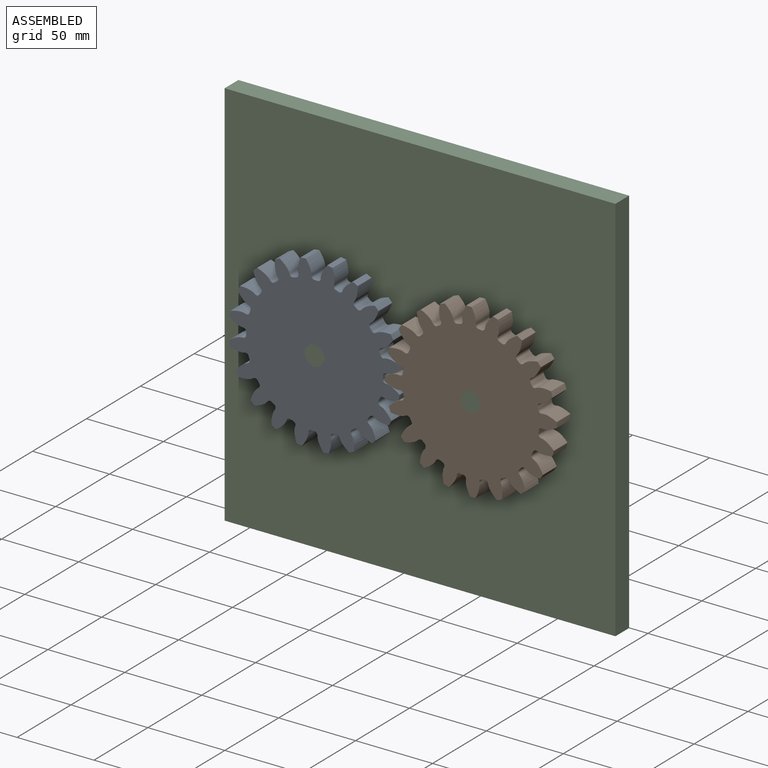
[diagram: assembled view]
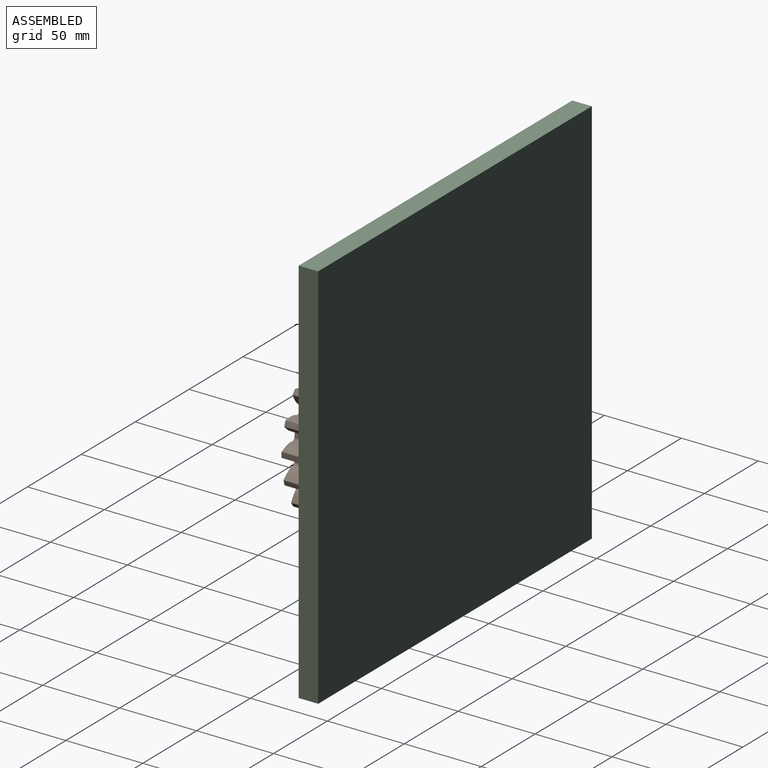
[diagram: assembled view, second angle]
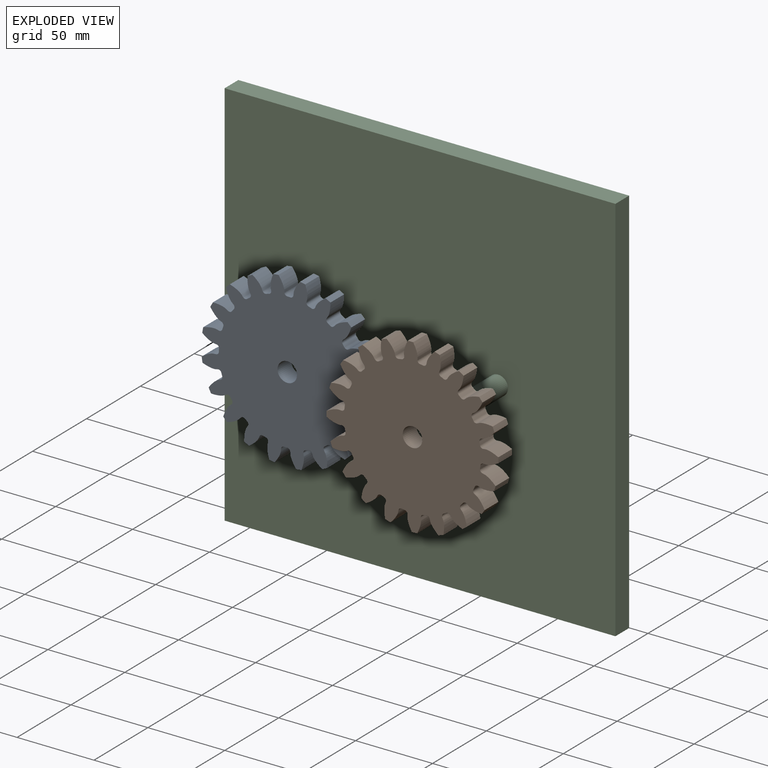
[diagram: exploded view]
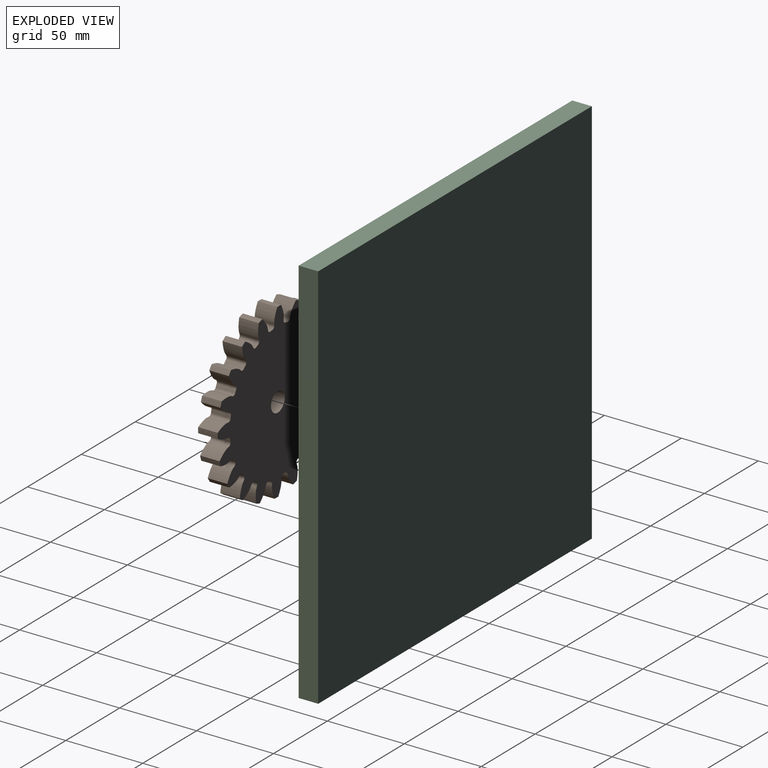
[diagram: exploded view, second angle]
ASSEMBLY  parts=3 mates=2
PART A: 123 faces, bbox 111x12.7x111 mm
  f0: extruded ~12.7x9.23mm, area 130.7mm2, adj f80,f81,f82,f83
  f1: cylinder r=44.45mm len=12.7mm, axis (0,1,0), area 25.8mm2, adj f81,f82,f83,f84
  f2: extruded ~12.7x9.23mm, area 130.7mm2, adj f3,f81,f82,f84
  f3: cylinder r=55.88mm len=12.7mm, axis (0,1,0), area 44.8mm2, adj f2,f4,f81,f82
  f4: extruded ~12.7x10.04mm, area 130.7mm2, adj f3,f81,f82,f85
  f5: cylinder r=44.45mm len=12.7mm, axis (0,1,0), area 25.8mm2, adj f81,f82,f85,f86
  f6: extruded ~12.7x7.53mm, area 130.7mm2, adj f7,f81,f82,f86
  f7: cylinder r=55.88mm len=12.7mm, axis (0,1,0), area 44.8mm2, adj f6,f8,f81,f82
  f8: extruded ~12.7x9.86mm, area 130.7mm2, adj f7,f81,f82,f87
  f9: cylinder r=44.45mm len=12.7mm, axis (0,1,0), area 25.8mm2, adj f81,f82,f87,f88
  f10: extruded ~12.7x8.71mm, area 130.7mm2, adj f11,f81,f82,f88
  f11: cylinder r=55.88mm len=12.7mm, axis (0,1,0), area 44.8mm2, adj f10,f12,f81,f82
  f12: extruded ~12.7x8.71mm, area 130.7mm2, adj f11,f81,f82,f89
  f13: cylinder r=44.45mm len=12.7mm, axis (0,1,0), area 25.8mm2, adj f81,f82,f89,f90
  f14: extruded ~12.7x9.86mm, area 130.7mm2, adj f15,f81,f82,f90
  f15: cylinder r=55.88mm len=12.7mm, axis (0,1,0), area 44.8mm2, adj f14,f16,f81,f82
  f16: extruded ~12.7x7.53mm, area 130.7mm2, adj f15,f81,f82,f91
  f17: cylinder r=44.45mm len=12.7mm, axis (0,1,0), area 25.8mm2, adj f81,f82,f91,f92
  f18: extruded ~12.7x10.04mm, area 130.7mm2, adj f19,f81,f82,f92
  f19: cylinder r=55.88mm len=12.7mm, axis (0,1,0), area 44.8mm2, adj f18,f20,f81,f82
  f20: extruded ~12.7x9.23mm, area 130.7mm2, adj f19,f81,f82,f93
  f21: cylinder r=44.45mm len=12.7mm, axis (0,1,0), area 25.8mm2, adj f81,f82,f93,f94
  f22: extruded ~12.7x9.23mm, area 130.7mm2, adj f23,f81,f82,f94
  f23: cylinder r=55.88mm len=12.7mm, axis (0,1,0), area 44.8mm2, adj f22,f24,f81,f82
  f24: extruded ~12.7x10.04mm, area 130.7mm2, adj f23,f81,f82,f95
  f25: cylinder r=44.45mm len=12.7mm, axis (0,1,0), area 25.8mm2, adj f81,f82,f95,f96
  f26: extruded ~12.7x7.53mm, area 130.7mm2, adj f27,f81,f82,f96
  f27: cylinder r=55.88mm len=12.7mm, axis (0,1,0), area 44.8mm2, adj f26,f28,f81,f82
  f28: extruded ~12.7x9.86mm, area 130.7mm2, adj f27,f81,f82,f97
  f29: cylinder r=44.45mm len=12.7mm, axis (0,1,0), area 25.8mm2, adj f81,f82,f97,f98
  f30: extruded ~12.7x8.71mm, area 130.7mm2, adj f31,f81,f82,f98
  f31: cylinder r=55.88mm len=12.7mm, axis (0,1,0), area 44.8mm2, adj f30,f32,f81,f82
  f32: extruded ~12.7x8.71mm, area 130.7mm2, adj f31,f81,f82,f99
  f33: cylinder r=44.45mm len=12.7mm, axis (0,1,0), area 25.8mm2, adj f81,f82,f99,f100
  f34: extruded ~12.7x9.86mm, area 130.7mm2, adj f35,f81,f82,f100
  f35: cylinder r=55.88mm len=12.7mm, axis (0,1,0), area 44.8mm2, adj f34,f36,f81,f82
  f36: extruded ~12.7x7.53mm, area 130.7mm2, adj f35,f81,f82,f101
  f37: cylinder r=44.45mm len=12.7mm, axis (0,1,0), area 25.8mm2, adj f81,f82,f101,f102
  f38: extruded ~12.7x10.04mm, area 130.7mm2, adj f39,f81,f82,f102
  f39: cylinder r=55.88mm len=12.7mm, axis (0,1,0), area 44.8mm2, adj f38,f40,f81,f82
  f40: extruded ~12.7x9.23mm, area 130.7mm2, adj f39,f81,f82,f103
  f41: cylinder r=44.45mm len=12.7mm, axis (0,1,0), area 25.8mm2, adj f81,f82,f103,f104
  f42: extruded ~12.7x9.23mm, area 130.7mm2, adj f43,f81,f82,f104
  f43: cylinder r=55.88mm len=12.7mm, axis (0,1,0), area 44.8mm2, adj f42,f44,f81,f82
  f44: extruded ~12.7x10.04mm, area 130.7mm2, adj f43,f81,f82,f105
  f45: cylinder r=44.45mm len=12.7mm, axis (0,1,0), area 25.8mm2, adj f81,f82,f105,f106
  f46: extruded ~12.7x7.53mm, area 130.7mm2, adj f47,f81,f82,f106
  f47: cylinder r=55.88mm len=12.7mm, axis (0,1,0), area 44.8mm2, adj f46,f48,f81,f82
  f48: extruded ~12.7x9.86mm, area 130.7mm2, adj f47,f81,f82,f107
  f49: cylinder r=44.45mm len=12.7mm, axis (0,1,0), area 25.8mm2, adj f81,f82,f107,f108
  f50: extruded ~12.7x8.71mm, area 130.7mm2, adj f51,f81,f82,f108
  f51: cylinder r=55.88mm len=12.7mm, axis (0,1,0), area 44.8mm2, adj f50,f52,f81,f82
  f52: extruded ~12.7x8.71mm, area 130.7mm2, adj f51,f81,f82,f109
  f53: cylinder r=44.45mm len=12.7mm, axis (0,1,0), area 25.8mm2, adj f81,f82,f109,f110
  f54: extruded ~12.7x9.86mm, area 130.7mm2, adj f55,f81,f82,f110
  f55: cylinder r=55.88mm len=12.7mm, axis (0,1,0), area 44.8mm2, adj f54,f56,f81,f82
  f56: extruded ~12.7x7.53mm, area 130.7mm2, adj f55,f81,f82,f111
  f57: cylinder r=44.45mm len=12.7mm, axis (0,1,0), area 25.8mm2, adj f81,f82,f111,f112
  f58: extruded ~12.7x10.04mm, area 130.7mm2, adj f59,f81,f82,f112
  f59: cylinder r=55.88mm len=12.7mm, axis (0,1,0), area 44.8mm2, adj f58,f60,f81,f82
  f60: extruded ~12.7x9.23mm, area 130.7mm2, adj f59,f81,f82,f113
  f61: cylinder r=44.45mm len=12.7mm, axis (0,1,0), area 25.8mm2, adj f81,f82,f113,f114
  f62: extruded ~12.7x9.23mm, area 130.7mm2, adj f63,f81,f82,f114
  f63: cylinder r=55.88mm len=12.7mm, axis (0,1,0), area 44.8mm2, adj f62,f64,f81,f82
  f64: extruded ~12.7x10.04mm, area 130.7mm2, adj f63,f81,f82,f115
  f65: cylinder r=44.45mm len=12.7mm, axis (0,1,0), area 25.8mm2, adj f81,f82,f115,f116
  f66: extruded ~12.7x7.53mm, area 130.7mm2, adj f67,f81,f82,f116
  f67: cylinder r=55.88mm len=12.7mm, axis (0,1,0), area 44.8mm2, adj f66,f68,f81,f82
  f68: extruded ~12.7x9.86mm, area 130.7mm2, adj f67,f81,f82,f117
  f69: cylinder r=44.45mm len=12.7mm, axis (0,1,0), area 25.8mm2, adj f81,f82,f117,f118
  f70: extruded ~12.7x8.71mm, area 130.7mm2, adj f71,f81,f82,f118
  f71: cylinder r=55.88mm len=12.7mm, axis (0,1,0), area 44.8mm2, adj f70,f72,f81,f82
  f72: extruded ~12.7x8.71mm, area 130.7mm2, adj f71,f81,f82,f119
  f73: cylinder r=44.45mm len=12.7mm, axis (0,1,0), area 25.8mm2, adj f81,f82,f119,f120
  f74: extruded ~12.7x9.86mm, area 130.7mm2, adj f75,f81,f82,f120
  f75: cylinder r=55.88mm len=12.7mm, axis (0,1,0), area 44.8mm2, adj f74,f76,f81,f82
  f76: extruded ~12.7x7.53mm, area 130.7mm2, adj f75,f81,f82,f121
  f77: cylinder r=44.45mm len=12.7mm, axis (0,1,0), area 25.8mm2, adj f81,f82,f121,f122
  f78: extruded ~12.7x10.04mm, area 130.7mm2, adj f80,f81,f82,f122
  f79: cylinder r=6.35mm len=12.7mm, axis (0,1,0), area 506.7mm2, adj f81,f82
  f80: cylinder r=55.88mm len=12.7mm, axis (0,1,0), area 44.8mm2, adj f0,f78,f81,f82
  f81: plane 110.96x110.96mm, normal (0,-1,0), area 7813mm2, adj f0,f1,f2,f3,f4,f5,f6,f7
  f82: plane 110.96x110.96mm, normal (0,1,0), area 7813mm2, adj f0,f1,f2,f3,f4,f5,f6,f7
  f83: cylinder r=1.88mm len=12.7mm, axis (0,1,0), area 36.7mm2, adj f0,f1,f81,f82
  f84: cylinder r=1.88mm len=12.7mm, axis (0,1,0), area 36.7mm2, adj f1,f2,f81,f82
  f85: cylinder r=1.88mm len=12.7mm, axis (0,1,0), area 36.7mm2, adj f4,f5,f81,f82
  f86: cylinder r=1.88mm len=12.7mm, axis (0,1,0), area 36.7mm2, adj f5,f6,f81,f82
  f87: cylinder r=1.88mm len=12.7mm, axis (0,1,0), area 36.7mm2, adj f8,f9,f81,f82
  f88: cylinder r=1.88mm len=12.7mm, axis (0,1,0), area 36.7mm2, adj f9,f10,f81,f82
  f89: cylinder r=1.88mm len=12.7mm, axis (0,1,0), area 36.7mm2, adj f12,f13,f81,f82
  f90: cylinder r=1.88mm len=12.7mm, axis (0,1,0), area 36.7mm2, adj f13,f14,f81,f82
  f91: cylinder r=1.88mm len=12.7mm, axis (0,1,0), area 36.7mm2, adj f16,f17,f81,f82
  f92: cylinder r=1.88mm len=12.7mm, axis (0,1,0), area 36.7mm2, adj f17,f18,f81,f82
  f93: cylinder r=1.88mm len=12.7mm, axis (0,1,0), area 36.7mm2, adj f20,f21,f81,f82
  f94: cylinder r=1.88mm len=12.7mm, axis (0,1,0), area 36.7mm2, adj f21,f22,f81,f82
  f95: cylinder r=1.88mm len=12.7mm, axis (0,1,0), area 36.7mm2, adj f24,f25,f81,f82
  f96: cylinder r=1.88mm len=12.7mm, axis (0,1,0), area 36.7mm2, adj f25,f26,f81,f82
  f97: cylinder r=1.88mm len=12.7mm, axis (0,1,0), area 36.7mm2, adj f28,f29,f81,f82
  f98: cylinder r=1.88mm len=12.7mm, axis (0,1,0), area 36.7mm2, adj f29,f30,f81,f82
  f99: cylinder r=1.88mm len=12.7mm, axis (0,1,0), area 36.7mm2, adj f32,f33,f81,f82
  f100: cylinder r=1.88mm len=12.7mm, axis (0,1,0), area 36.7mm2, adj f33,f34,f81,f82
  f101: cylinder r=1.88mm len=12.7mm, axis (0,1,0), area 36.7mm2, adj f36,f37,f81,f82
  f102: cylinder r=1.88mm len=12.7mm, axis (0,1,0), area 36.7mm2, adj f37,f38,f81,f82
  f103: cylinder r=1.88mm len=12.7mm, axis (0,1,0), area 36.7mm2, adj f40,f41,f81,f82
  f104: cylinder r=1.88mm len=12.7mm, axis (0,1,0), area 36.7mm2, adj f41,f42,f81,f82
  f105: cylinder r=1.88mm len=12.7mm, axis (0,1,0), area 36.7mm2, adj f44,f45,f81,f82
  f106: cylinder r=1.88mm len=12.7mm, axis (0,1,0), area 36.7mm2, adj f45,f46,f81,f82
  f107: cylinder r=1.88mm len=12.7mm, axis (0,1,0), area 36.7mm2, adj f48,f49,f81,f82
  f108: cylinder r=1.88mm len=12.7mm, axis (0,1,0), area 36.7mm2, adj f49,f50,f81,f82
  f109: cylinder r=1.88mm len=12.7mm, axis (0,1,0), area 36.7mm2, adj f52,f53,f81,f82
  f110: cylinder r=1.88mm len=12.7mm, axis (0,1,0), area 36.7mm2, adj f53,f54,f81,f82
  f111: cylinder r=1.88mm len=12.7mm, axis (0,1,0), area 36.7mm2, adj f56,f57,f81,f82
  f112: cylinder r=1.88mm len=12.7mm, axis (0,1,0), area 36.7mm2, adj f57,f58,f81,f82
  f113: cylinder r=1.88mm len=12.7mm, axis (0,1,0), area 36.7mm2, adj f60,f61,f81,f82
  f114: cylinder r=1.88mm len=12.7mm, axis (0,1,0), area 36.7mm2, adj f61,f62,f81,f82
  f115: cylinder r=1.88mm len=12.7mm, axis (0,1,0), area 36.7mm2, adj f64,f65,f81,f82
  f116: cylinder r=1.88mm len=12.7mm, axis (0,1,0), area 36.7mm2, adj f65,f66,f81,f82
  f117: cylinder r=1.88mm len=12.7mm, axis (0,1,0), area 36.7mm2, adj f68,f69,f81,f82
  f118: cylinder r=1.88mm len=12.7mm, axis (0,1,0), area 36.7mm2, adj f69,f70,f81,f82
  f119: cylinder r=1.88mm len=12.7mm, axis (0,1,0), area 36.7mm2, adj f72,f73,f81,f82
  f120: cylinder r=1.88mm len=12.7mm, axis (0,1,0), area 36.7mm2, adj f73,f74,f81,f82
  f121: cylinder r=1.88mm len=12.7mm, axis (0,1,0), area 36.7mm2, adj f76,f77,f81,f82
  f122: cylinder r=1.88mm len=12.7mm, axis (0,1,0), area 36.7mm2, adj f77,f78,f81,f82
PART B: 123 faces, bbox 111.8x12.7x111.8 mm
  f0: extruded ~12.7x9.76mm, area 130.7mm2, adj f80,f81,f82,f83
  f1: cylinder r=44.45mm len=12.7mm, axis (0,1,0), area 25.8mm2, adj f81,f82,f83,f84
  f2: extruded ~12.7x8.49mm, area 130.7mm2, adj f3,f81,f82,f84
  f3: cylinder r=55.88mm len=12.7mm, axis (0,1,0), area 44.8mm2, adj f2,f4,f81,f82
  f4: extruded ~12.7x10.07mm, area 130.7mm2, adj f3,f81,f82,f85
  f5: cylinder r=44.45mm len=12.7mm, axis (0,1,0), area 25.8mm2, adj f81,f82,f85,f86
  f6: extruded ~12.7x7.81mm, area 130.7mm2, adj f7,f81,f82,f86
  f7: cylinder r=55.88mm len=12.7mm, axis (0,1,0), area 44.8mm2, adj f6,f8,f81,f82
  f8: extruded ~12.7x9.4mm, area 130.7mm2, adj f7,f81,f82,f87
  f9: cylinder r=44.45mm len=12.7mm, axis (0,1,0), area 25.8mm2, adj f81,f82,f87,f88
  f10: extruded ~12.7x9.4mm, area 130.7mm2, adj f11,f81,f82,f88
  f11: cylinder r=55.88mm len=12.7mm, axis (0,1,0), area 44.8mm2, adj f10,f12,f81,f82
  f12: extruded ~12.7x7.81mm, area 130.7mm2, adj f11,f81,f82,f89
  f13: cylinder r=44.45mm len=12.7mm, axis (0,1,0), area 25.8mm2, adj f81,f82,f89,f90
  f14: extruded ~12.7x10.07mm, area 130.7mm2, adj f15,f81,f82,f90
  f15: cylinder r=55.88mm len=12.7mm, axis (0,1,0), area 44.8mm2, adj f14,f16,f81,f82
  f16: extruded ~12.7x8.49mm, area 130.7mm2, adj f15,f81,f82,f91
  f17: cylinder r=44.45mm len=12.7mm, axis (0,1,0), area 25.8mm2, adj f81,f82,f91,f92
  f18: extruded ~12.7x9.76mm, area 130.7mm2, adj f19,f81,f82,f92
  f19: cylinder r=55.88mm len=12.7mm, axis (0,1,0), area 44.8mm2, adj f18,f20,f81,f82
  f20: extruded ~12.7x9.76mm, area 130.7mm2, adj f19,f81,f82,f93
  f21: cylinder r=44.45mm len=12.7mm, axis (0,1,0), area 25.8mm2, adj f81,f82,f93,f94
  f22: extruded ~12.7x8.49mm, area 130.7mm2, adj f23,f81,f82,f94
  f23: cylinder r=55.88mm len=12.7mm, axis (0,1,0), area 44.8mm2, adj f22,f24,f81,f82
  f24: extruded ~12.7x10.07mm, area 130.7mm2, adj f23,f81,f82,f95
  f25: cylinder r=44.45mm len=12.7mm, axis (0,1,0), area 25.8mm2, adj f81,f82,f95,f96
  f26: extruded ~12.7x7.81mm, area 130.7mm2, adj f27,f81,f82,f96
  f27: cylinder r=55.88mm len=12.7mm, axis (0,1,0), area 44.8mm2, adj f26,f28,f81,f82
  f28: extruded ~12.7x9.4mm, area 130.7mm2, adj f27,f81,f82,f97
  f29: cylinder r=44.45mm len=12.7mm, axis (0,1,0), area 25.8mm2, adj f81,f82,f97,f98
  f30: extruded ~12.7x9.4mm, area 130.7mm2, adj f31,f81,f82,f98
  f31: cylinder r=55.88mm len=12.7mm, axis (0,1,0), area 44.8mm2, adj f30,f32,f81,f82
  f32: extruded ~12.7x7.81mm, area 130.7mm2, adj f31,f81,f82,f99
  f33: cylinder r=44.45mm len=12.7mm, axis (0,1,0), area 25.8mm2, adj f81,f82,f99,f100
  f34: extruded ~12.7x10.07mm, area 130.7mm2, adj f35,f81,f82,f100
  f35: cylinder r=55.88mm len=12.7mm, axis (0,1,0), area 44.8mm2, adj f34,f36,f81,f82
  f36: extruded ~12.7x8.49mm, area 130.7mm2, adj f35,f81,f82,f101
  f37: cylinder r=44.45mm len=12.7mm, axis (0,1,0), area 25.8mm2, adj f81,f82,f101,f102
  f38: extruded ~12.7x9.76mm, area 130.7mm2, adj f39,f81,f82,f102
  f39: cylinder r=55.88mm len=12.7mm, axis (0,1,0), area 44.8mm2, adj f38,f40,f81,f82
  f40: extruded ~12.7x9.76mm, area 130.7mm2, adj f39,f81,f82,f103
  f41: cylinder r=44.45mm len=12.7mm, axis (0,1,0), area 25.8mm2, adj f81,f82,f103,f104
  f42: extruded ~12.7x8.49mm, area 130.7mm2, adj f43,f81,f82,f104
  f43: cylinder r=55.88mm len=12.7mm, axis (0,1,0), area 44.8mm2, adj f42,f44,f81,f82
  f44: extruded ~12.7x10.07mm, area 130.7mm2, adj f43,f81,f82,f105
  f45: cylinder r=44.45mm len=12.7mm, axis (0,1,0), area 25.8mm2, adj f81,f82,f105,f106
  f46: extruded ~12.7x7.81mm, area 130.7mm2, adj f47,f81,f82,f106
  f47: cylinder r=55.88mm len=12.7mm, axis (0,1,0), area 44.8mm2, adj f46,f48,f81,f82
  f48: extruded ~12.7x9.4mm, area 130.7mm2, adj f47,f81,f82,f107
  f49: cylinder r=44.45mm len=12.7mm, axis (0,1,0), area 25.8mm2, adj f81,f82,f107,f108
  f50: extruded ~12.7x9.4mm, area 130.7mm2, adj f51,f81,f82,f108
  f51: cylinder r=55.88mm len=12.7mm, axis (0,1,0), area 44.8mm2, adj f50,f52,f81,f82
  f52: extruded ~12.7x7.81mm, area 130.7mm2, adj f51,f81,f82,f109
  f53: cylinder r=44.45mm len=12.7mm, axis (0,1,0), area 25.8mm2, adj f81,f82,f109,f110
  f54: extruded ~12.7x10.07mm, area 130.7mm2, adj f55,f81,f82,f110
  f55: cylinder r=55.88mm len=12.7mm, axis (0,1,0), area 44.8mm2, adj f54,f56,f81,f82
  f56: extruded ~12.7x8.49mm, area 130.7mm2, adj f55,f81,f82,f111
  f57: cylinder r=44.45mm len=12.7mm, axis (0,1,0), area 25.8mm2, adj f81,f82,f111,f112
  f58: extruded ~12.7x9.76mm, area 130.7mm2, adj f59,f81,f82,f112
  f59: cylinder r=55.88mm len=12.7mm, axis (0,1,0), area 44.8mm2, adj f58,f60,f81,f82
  f60: extruded ~12.7x9.76mm, area 130.7mm2, adj f59,f81,f82,f113
  f61: cylinder r=44.45mm len=12.7mm, axis (0,1,0), area 25.8mm2, adj f81,f82,f113,f114
  f62: extruded ~12.7x8.49mm, area 130.7mm2, adj f63,f81,f82,f114
  f63: cylinder r=55.88mm len=12.7mm, axis (0,1,0), area 44.8mm2, adj f62,f64,f81,f82
  f64: extruded ~12.7x10.07mm, area 130.7mm2, adj f63,f81,f82,f115
  f65: cylinder r=44.45mm len=12.7mm, axis (0,1,0), area 25.8mm2, adj f81,f82,f115,f116
  f66: extruded ~12.7x7.81mm, area 130.7mm2, adj f67,f81,f82,f116
  f67: cylinder r=55.88mm len=12.7mm, axis (0,1,0), area 44.8mm2, adj f66,f68,f81,f82
  f68: extruded ~12.7x9.4mm, area 130.7mm2, adj f67,f81,f82,f117
  f69: cylinder r=44.45mm len=12.7mm, axis (0,1,0), area 25.8mm2, adj f81,f82,f117,f118
  f70: extruded ~12.7x9.4mm, area 130.7mm2, adj f71,f81,f82,f118
  f71: cylinder r=55.88mm len=12.7mm, axis (0,1,0), area 44.8mm2, adj f70,f72,f81,f82
  f72: extruded ~12.7x7.81mm, area 130.7mm2, adj f71,f81,f82,f119
  f73: cylinder r=44.45mm len=12.7mm, axis (0,1,0), area 25.8mm2, adj f81,f82,f119,f120
  f74: extruded ~12.7x10.07mm, area 130.7mm2, adj f75,f81,f82,f120
  f75: cylinder r=55.88mm len=12.7mm, axis (0,1,0), area 44.8mm2, adj f74,f76,f81,f82
  f76: extruded ~12.7x8.49mm, area 130.7mm2, adj f75,f81,f82,f121
  f77: cylinder r=44.45mm len=12.7mm, axis (0,1,0), area 25.8mm2, adj f81,f82,f121,f122
  f78: extruded ~12.7x9.76mm, area 130.7mm2, adj f80,f81,f82,f122
  f79: cylinder r=6.35mm len=12.7mm, axis (0,1,0), area 506.7mm2, adj f81,f82
  f80: cylinder r=55.88mm len=12.7mm, axis (0,1,0), area 44.8mm2, adj f0,f78,f81,f82
  f81: plane 111.78x111.78mm, normal (0,-1,0), area 7813mm2, adj f0,f1,f2,f3,f4,f5,f6,f7
  f82: plane 111.78x111.78mm, normal (0,1,0), area 7813mm2, adj f0,f1,f2,f3,f4,f5,f6,f7
  f83: cylinder r=1.88mm len=12.7mm, axis (0,1,0), area 36.7mm2, adj f0,f1,f81,f82
  f84: cylinder r=1.88mm len=12.7mm, axis (0,1,0), area 36.7mm2, adj f1,f2,f81,f82
  f85: cylinder r=1.88mm len=12.7mm, axis (0,1,0), area 36.7mm2, adj f4,f5,f81,f82
  f86: cylinder r=1.88mm len=12.7mm, axis (0,1,0), area 36.7mm2, adj f5,f6,f81,f82
  f87: cylinder r=1.88mm len=12.7mm, axis (0,1,0), area 36.7mm2, adj f8,f9,f81,f82
  f88: cylinder r=1.88mm len=12.7mm, axis (0,1,0), area 36.7mm2, adj f9,f10,f81,f82
  f89: cylinder r=1.88mm len=12.7mm, axis (0,1,0), area 36.7mm2, adj f12,f13,f81,f82
  f90: cylinder r=1.88mm len=12.7mm, axis (0,1,0), area 36.7mm2, adj f13,f14,f81,f82
  f91: cylinder r=1.88mm len=12.7mm, axis (0,1,0), area 36.7mm2, adj f16,f17,f81,f82
  f92: cylinder r=1.88mm len=12.7mm, axis (0,1,0), area 36.7mm2, adj f17,f18,f81,f82
  f93: cylinder r=1.88mm len=12.7mm, axis (0,1,0), area 36.7mm2, adj f20,f21,f81,f82
  f94: cylinder r=1.88mm len=12.7mm, axis (0,1,0), area 36.7mm2, adj f21,f22,f81,f82
  f95: cylinder r=1.88mm len=12.7mm, axis (0,1,0), area 36.7mm2, adj f24,f25,f81,f82
  f96: cylinder r=1.88mm len=12.7mm, axis (0,1,0), area 36.7mm2, adj f25,f26,f81,f82
  f97: cylinder r=1.88mm len=12.7mm, axis (0,1,0), area 36.7mm2, adj f28,f29,f81,f82
  f98: cylinder r=1.88mm len=12.7mm, axis (0,1,0), area 36.7mm2, adj f29,f30,f81,f82
  f99: cylinder r=1.88mm len=12.7mm, axis (0,1,0), area 36.7mm2, adj f32,f33,f81,f82
  f100: cylinder r=1.88mm len=12.7mm, axis (0,1,0), area 36.7mm2, adj f33,f34,f81,f82
  f101: cylinder r=1.88mm len=12.7mm, axis (0,1,0), area 36.7mm2, adj f36,f37,f81,f82
  f102: cylinder r=1.88mm len=12.7mm, axis (0,1,0), area 36.7mm2, adj f37,f38,f81,f82
  f103: cylinder r=1.88mm len=12.7mm, axis (0,1,0), area 36.7mm2, adj f40,f41,f81,f82
  f104: cylinder r=1.88mm len=12.7mm, axis (0,1,0), area 36.7mm2, adj f41,f42,f81,f82
  f105: cylinder r=1.88mm len=12.7mm, axis (0,1,0), area 36.7mm2, adj f44,f45,f81,f82
  f106: cylinder r=1.88mm len=12.7mm, axis (0,1,0), area 36.7mm2, adj f45,f46,f81,f82
  f107: cylinder r=1.88mm len=12.7mm, axis (0,1,0), area 36.7mm2, adj f48,f49,f81,f82
  f108: cylinder r=1.88mm len=12.7mm, axis (0,1,0), area 36.7mm2, adj f49,f50,f81,f82
  f109: cylinder r=1.88mm len=12.7mm, axis (0,1,0), area 36.7mm2, adj f52,f53,f81,f82
  f110: cylinder r=1.88mm len=12.7mm, axis (0,1,0), area 36.7mm2, adj f53,f54,f81,f82
  f111: cylinder r=1.88mm len=12.7mm, axis (0,1,0), area 36.7mm2, adj f56,f57,f81,f82
  f112: cylinder r=1.88mm len=12.7mm, axis (0,1,0), area 36.7mm2, adj f57,f58,f81,f82
  f113: cylinder r=1.88mm len=12.7mm, axis (0,1,0), area 36.7mm2, adj f60,f61,f81,f82
  f114: cylinder r=1.88mm len=12.7mm, axis (0,1,0), area 36.7mm2, adj f61,f62,f81,f82
  f115: cylinder r=1.88mm len=12.7mm, axis (0,1,0), area 36.7mm2, adj f64,f65,f81,f82
  f116: cylinder r=1.88mm len=12.7mm, axis (0,1,0), area 36.7mm2, adj f65,f66,f81,f82
  f117: cylinder r=1.88mm len=12.7mm, axis (0,1,0), area 36.7mm2, adj f68,f69,f81,f82
  f118: cylinder r=1.88mm len=12.7mm, axis (0,1,0), area 36.7mm2, adj f69,f70,f81,f82
  f119: cylinder r=1.88mm len=12.7mm, axis (0,1,0), area 36.7mm2, adj f72,f73,f81,f82
  f120: cylinder r=1.88mm len=12.7mm, axis (0,1,0), area 36.7mm2, adj f73,f74,f81,f82
  f121: cylinder r=1.88mm len=12.7mm, axis (0,1,0), area 36.7mm2, adj f76,f77,f81,f82
  f122: cylinder r=1.88mm len=12.7mm, axis (0,1,0), area 36.7mm2, adj f77,f78,f81,f82
PART C: 10 faces, bbox 254x38.1x254 mm
  f0: plane 254x12.7mm, normal (-1,0,0), area 3225.8mm2, adj f1,f3,f4,f5
  f1: plane 254x12.7mm, normal (0,0,-1), area 3225.8mm2, adj f0,f2,f4,f5
  f2: plane 254x12.7mm, normal (1,0,0), area 3225.8mm2, adj f1,f3,f4,f5
  f3: plane 254x12.7mm, normal (0,0,1), area 3225.8mm2, adj f0,f2,f4,f5
  f4: plane 254x254mm, normal (0,-1,0), area 64262.6mm2, adj f0,f1,f2,f3,f6,f8
  f5: plane 254x254mm, normal (0,1,0), area 64516mm2, adj f0,f1,f2,f3
  f6: cylinder r=6.35mm len=25.4mm, axis (0,1,0), area 1013.4mm2, adj f4,f7
  f7: plane 12.7x12.7mm, normal (0,-1,0), area 126.7mm2, adj f6
  f8: cylinder r=6.35mm len=25.4mm, axis (0,1,0), area 1013.4mm2, adj f4,f9
  f9: plane 12.7x12.7mm, normal (0,-1,0), area 126.7mm2, adj f8
PLACE A rot(axis=(0,1,0),37.3deg) t=(-183.22,-85.16,2.34)mm
PLACE B rot(axis=(0,-1,0),37.3deg) t=(-81.62,-85.16,2.34)mm
PLACE C t=(-132.42,-59.76,2.34)mm fixed
MATE revolute B.f3 <-> C.f8  axis (0,-1,0) through (-81.62,-97.86,2.34)mm
MATE revolute A.f3 <-> C.f6  axis (0,-1,0) through (-183.22,-97.86,2.34)mm
